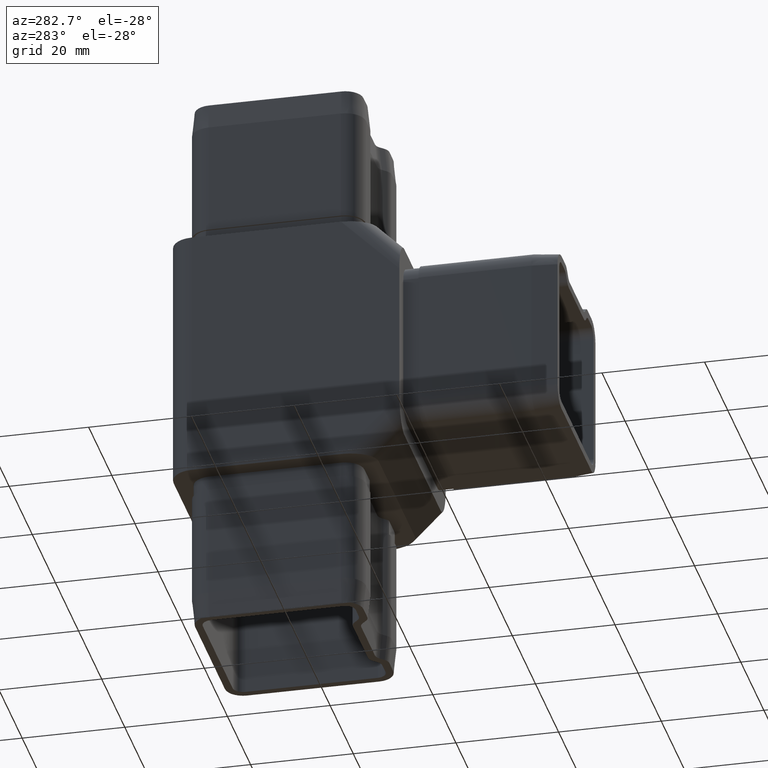
[diagram: clean part render]
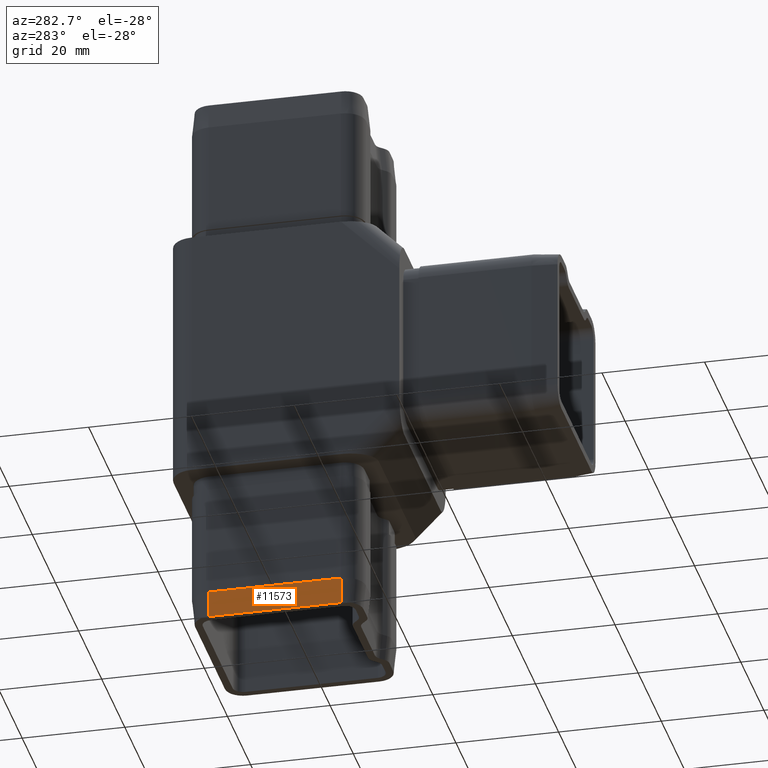
[diagram: same view with one face highlighted and labeled with its STEP entity id]
A machine part, auxiliary view. The second image highlights one B-rep face of the part: STEP entity #11573.
In plain terms, the highlighted planar face has unit normal (0.995, -0, 0.0995).
Its self-contained STEP definition (entity closure, byte-faithful):
#914 = ORIENTED_EDGE ( 'NONE', *, *, #1362, .F. ) ;
#1362 = EDGE_CURVE ( 'NONE', #12528, #19246, #5896, .T. ) ;
#1454 = LINE ( 'NONE', #16729, #13150 ) ;
#1561 = ORIENTED_EDGE ( 'NONE', *, *, #19772, .F. ) ;
#1884 = AXIS2_PLACEMENT_3D ( 'NONE', #8850, #4104, #15274 ) ;
#3206 = VECTOR ( 'NONE', #11186, 1000.000000000000000 ) ;
#3277 = CARTESIAN_POINT ( 'NONE',  ( -16.39999999999999900, -10.39999999999999700, -55.00000000000000700 ) ) ;
#4104 = DIRECTION ( 'NONE',  ( 0.9950371902099891500, -0.0000000000000000000, 0.09950371902099892900 ) ) ;
#4226 = DIRECTION ( 'NONE',  ( 0.0000000000000000000, 1.000000000000000000, 0.0000000000000000000 ) ) ;
#4718 = LINE ( 'NONE', #8722, #11212 ) ;
#5474 = ORIENTED_EDGE ( 'NONE', *, *, #18634, .T. ) ;
#5896 = LINE ( 'NONE', #7196, #10874 ) ;
#7196 = CARTESIAN_POINT ( 'NONE',  ( -16.39999999999999900, -10.39999999999999700, -55.00000000000000700 ) ) ;
#7430 = LINE ( 'NONE', #7978, #3206 ) ;
#7978 = CARTESIAN_POINT ( 'NONE',  ( -16.89999999999999900, -10.39999999999999900, -50.00000000000000000 ) ) ;
#8722 = CARTESIAN_POINT ( 'NONE',  ( -16.43777259535259500, -10.39999999999999700, -54.62227404647405400 ) ) ;
#8850 = CARTESIAN_POINT ( 'NONE',  ( -16.43777259535259500, -10.39999999999999700, -54.62227404647405400 ) ) ;
#10630 = VERTEX_POINT ( 'NONE', #11482 ) ;
#10874 = VECTOR ( 'NONE', #4226, 1000.000000000000000 ) ;
#11186 = DIRECTION ( 'NONE',  ( 0.0000000000000000000, 1.000000000000000000, 0.0000000000000000000 ) ) ;
#11212 = VECTOR ( 'NONE', #16800, 1000.000000000000100 ) ;
#11482 = CARTESIAN_POINT ( 'NONE',  ( -16.89999999999999900, 15.40000000000000200, -50.00000000000000000 ) ) ;
#11573 = ADVANCED_FACE ( 'NONE', ( #19254 ), #19953, .F. ) ;
#11809 = EDGE_LOOP ( 'NONE', ( #1561, #15379, #5474, #914 ) ) ;
#12528 = VERTEX_POINT ( 'NONE', #3277 ) ;
#13150 = VECTOR ( 'NONE', #19996, 1000.000000000000100 ) ;
#13525 = CARTESIAN_POINT ( 'NONE',  ( -16.89999999999999900, -10.39999999999999900, -50.00000000000000000 ) ) ;
#15274 = DIRECTION ( 'NONE',  ( 0.09950371902099891500, 0.0000000000000000000, -0.9950371902099890400 ) ) ;
#15379 = ORIENTED_EDGE ( 'NONE', *, *, #16997, .T. ) ;
#16206 = VERTEX_POINT ( 'NONE', #13525 ) ;
#16729 = CARTESIAN_POINT ( 'NONE',  ( -16.43777259535259500, 15.40000000000000400, -54.62227404647405400 ) ) ;
#16800 = DIRECTION ( 'NONE',  ( 0.09950371902099890100, -1.218569110023239300E-017, -0.9950371902099890400 ) ) ;
#16997 = EDGE_CURVE ( 'NONE', #16206, #10630, #7430, .T. ) ;
#18634 = EDGE_CURVE ( 'NONE', #10630, #19246, #1454, .T. ) ;
#19246 = VERTEX_POINT ( 'NONE', #19882 ) ;
#19254 = FACE_OUTER_BOUND ( 'NONE', #11809, .T. ) ;
#19772 = EDGE_CURVE ( 'NONE', #16206, #12528, #4718, .T. ) ;
#19882 = CARTESIAN_POINT ( 'NONE',  ( -16.39999999999999900, 15.40000000000000400, -55.00000000000000700 ) ) ;
#19953 = PLANE ( 'NONE',  #1884 ) ;
#19996 = DIRECTION ( 'NONE',  ( 0.09950371902099890100, -1.218569110023239300E-017, -0.9950371902099890400 ) ) ;